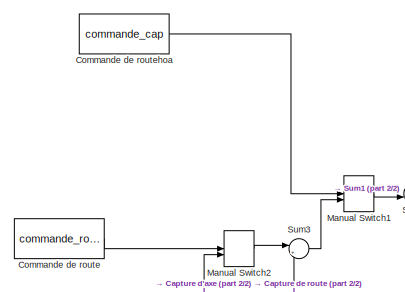
[diagram: root canvas - part 1/2, middle left region]
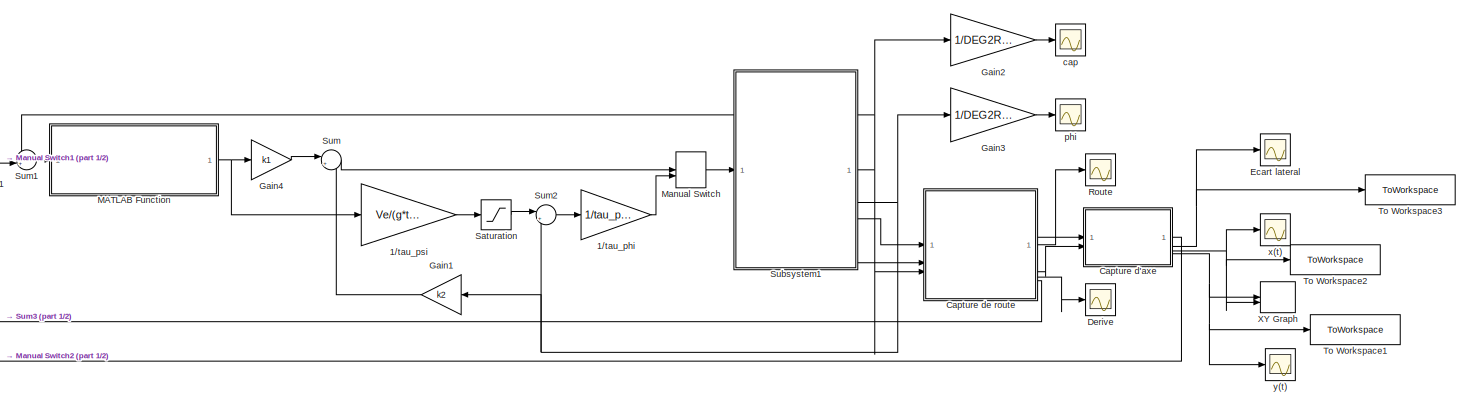
[diagram: root canvas - part 2/2, most of the canvas]
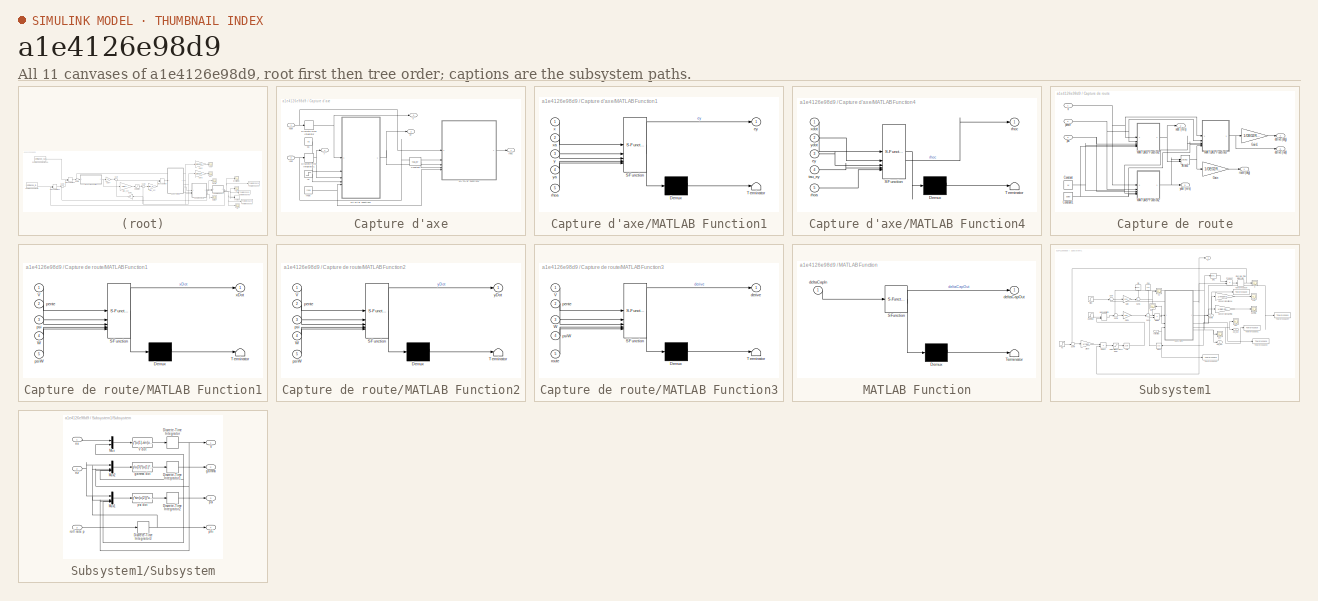
[diagram: thumbnail index - all 11 canvases of the model, root first then tree order]
MODEL slx_a1e4126e98d9
KIND model
CONFIG AbsTol = auto
CONFIG EnableMultiTasking = on
CONFIG FixedStep = Ts
CONFIG MaxStep = auto
CONFIG MinStep = auto
CONFIG RelTol = 1e-3
CONFIG SampleTimeConstraint = Unconstrained
CONFIG SolverName = FixedStepDiscrete
CONFIG StartTime = 0.0
CONFIG StopTime = 400
BLOCK [Gain] 1//tau_phi
  Gain = 1/tau_phi
BLOCK [Gain] 1//tau_psi
  Gain = Ve/(g*tau_psi)
BLOCK [SubSystem] Capture d'axe
BLOCK [Constant] Capture d'axe/Constant
  Value = tau_ey
BLOCK [DiscreteIntegrator] Capture d'axe/Discrete-Time Integrator
  ICPrevOutput = DiscIntNeverNeededParam
  ICPrevScaledInput = DiscIntNeverNeededParam
  InitialConditionSetting = Auto
  SampleTime = -1
BLOCK [DiscreteIntegrator] Capture d'axe/Discrete-Time Integrator1
  ICPrevOutput = DiscIntNeverNeededParam
  ICPrevScaledInput = DiscIntNeverNeededParam
  InitialConditionSetting = Auto
  SampleTime = -1
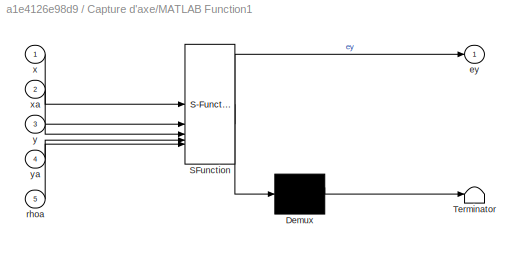
BLOCK [SubSystem] Capture d'axe/MATLAB Function1
  ErrorFcn = Stateflow.Translate.translate
  PermitHierarchicalResolution = ExplicitOnly
  SFBlockType = MATLAB Function
  TreatAsAtomicUnit = on
BLOCK [Demux] Capture d'axe/MATLAB Function1/ Demux 
  Outputs = 1
BLOCK [S-Function] Capture d'axe/MATLAB Function1/ SFunction 
  EnableBusSupport = off
  FunctionName = sf_sfun
  PortCounts = [5 2]
  SFcnIsStateOwnerBlock = off
  SFunctionDeploymentMode = off
  Tag = Stateflow S-Function 4
BLOCK [Terminator] Capture d'axe/MATLAB Function1/ Terminator 
BLOCK [Outport] Capture d'axe/MATLAB Function1/ey
  VectorParamsAs1DForOutWhenUnconnected = off
BLOCK [Inport] Capture d'axe/MATLAB Function1/rhoa
  Port = 5
BLOCK [Inport] Capture d'axe/MATLAB Function1/x
BLOCK [Inport] Capture d'axe/MATLAB Function1/xa
  Port = 2
BLOCK [Inport] Capture d'axe/MATLAB Function1/y
  Port = 3
BLOCK [Inport] Capture d'axe/MATLAB Function1/ya
  Port = 4
BLOCK [SubSystem] Capture d'axe/MATLAB Function4
  ErrorFcn = Stateflow.Translate.translate
  PermitHierarchicalResolution = ExplicitOnly
  SFBlockType = MATLAB Function
  TreatAsAtomicUnit = on
BLOCK [Demux] Capture d'axe/MATLAB Function4/ Demux 
  Outputs = 1
BLOCK [S-Function] Capture d'axe/MATLAB Function4/ SFunction 
  EnableBusSupport = off
  FunctionName = sf_sfun
  PortCounts = [5 2]
  SFcnIsStateOwnerBlock = off
  SFunctionDeploymentMode = off
  Tag = Stateflow S-Function 8
BLOCK [Terminator] Capture d'axe/MATLAB Function4/ Terminator 
BLOCK [Inport] Capture d'axe/MATLAB Function4/ey
  Port = 3
BLOCK [Inport] Capture d'axe/MATLAB Function4/rhoa
  Port = 5
BLOCK [Outport] Capture d'axe/MATLAB Function4/rhoc
  VectorParamsAs1DForOutWhenUnconnected = off
BLOCK [Inport] Capture d'axe/MATLAB Function4/tau_ey
  Port = 4
BLOCK [Inport] Capture d'axe/MATLAB Function4/xdot
BLOCK [Inport] Capture d'axe/MATLAB Function4/ydot
  Port = 2
BLOCK [Outport] Capture d'axe/ey
  Port = 2
BLOCK [Constant] Capture d'axe/rhoa
  Value = rhoa
BLOCK [Outport] Capture d'axe/rhoc
BLOCK [Outport] Capture d'axe/x
  Port = 3
BLOCK [Constant] Capture d'axe/xa
  Value = xa
BLOCK [Inport] Capture d'axe/xdot
BLOCK [Outport] Capture d'axe/y
  Port = 4
BLOCK [Step] Capture d'axe/ya
  After = ya
  SampleTime = 0
  Time = 50
BLOCK [Inport] Capture d'axe/ydot
  Port = 2
BLOCK [SubSystem] Capture de route
BLOCK [Trigonometry] Capture de route/Atan2
  Operator = atan2
BLOCK [Constant] Capture de route/Constant
  Value = W
BLOCK [Constant] Capture de route/Constant1
  Value = psiW
BLOCK [Gain] Capture de route/Gain
  Gain = 1/DEG2RAD
BLOCK [Gain] Capture de route/Gain1
  Gain = 1/DEG2RAD
BLOCK [SubSystem] Capture de route/MATLAB Function1
  ErrorFcn = Stateflow.Translate.translate
  PermitHierarchicalResolution = ExplicitOnly
  SFBlockType = MATLAB Function
  TreatAsAtomicUnit = on
BLOCK [Demux] Capture de route/MATLAB Function1/ Demux 
  Outputs = 1
BLOCK [S-Function] Capture de route/MATLAB Function1/ SFunction 
  EnableBusSupport = off
  FunctionName = sf_sfun
  PortCounts = [5 2]
  SFcnIsStateOwnerBlock = off
  SFunctionDeploymentMode = off
  Tag = Stateflow S-Function 1
BLOCK [Terminator] Capture de route/MATLAB Function1/ Terminator 
BLOCK [Inport] Capture de route/MATLAB Function1/V
BLOCK [Inport] Capture de route/MATLAB Function1/W
  Port = 4
BLOCK [Inport] Capture de route/MATLAB Function1/pente
  Port = 2
BLOCK [Inport] Capture de route/MATLAB Function1/psi
  Port = 3
BLOCK [Inport] Capture de route/MATLAB Function1/psiW
  Port = 5
BLOCK [Outport] Capture de route/MATLAB Function1/xDot
  VectorParamsAs1DForOutWhenUnconnected = off
BLOCK [SubSystem] Capture de route/MATLAB Function2
  ErrorFcn = Stateflow.Translate.translate
  PermitHierarchicalResolution = ExplicitOnly
  SFBlockType = MATLAB Function
  TreatAsAtomicUnit = on
BLOCK [Demux] Capture de route/MATLAB Function2/ Demux 
  Outputs = 1
BLOCK [S-Function] Capture de route/MATLAB Function2/ SFunction 
  EnableBusSupport = off
  FunctionName = sf_sfun
  PortCounts = [5 2]
  SFcnIsStateOwnerBlock = off
  SFunctionDeploymentMode = off
  Tag = Stateflow S-Function 3
BLOCK [Terminator] Capture de route/MATLAB Function2/ Terminator 
BLOCK [Inport] Capture de route/MATLAB Function2/V
BLOCK [Inport] Capture de route/MATLAB Function2/W
  Port = 4
BLOCK [Inport] Capture de route/MATLAB Function2/pente
  Port = 2
BLOCK [Inport] Capture de route/MATLAB Function2/psi
  Port = 3
BLOCK [Inport] Capture de route/MATLAB Function2/psiW
  Port = 5
BLOCK [Outport] Capture de route/MATLAB Function2/yDot
  VectorParamsAs1DForOutWhenUnconnected = off
BLOCK [SubSystem] Capture de route/MATLAB Function3
  ErrorFcn = Stateflow.Translate.translate
  PermitHierarchicalResolution = ExplicitOnly
  SFBlockType = MATLAB Function
  TreatAsAtomicUnit = on
BLOCK [Demux] Capture de route/MATLAB Function3/ Demux 
  Outputs = 1
BLOCK [S-Function] Capture de route/MATLAB Function3/ SFunction 
  EnableBusSupport = off
  FunctionName = sf_sfun
  PortCounts = [5 2]
  SFcnIsStateOwnerBlock = off
  SFunctionDeploymentMode = off
  Tag = Stateflow S-Function 5
BLOCK [Terminator] Capture de route/MATLAB Function3/ Terminator 
BLOCK [Inport] Capture de route/MATLAB Function3/V
BLOCK [Inport] Capture de route/MATLAB Function3/W
  Port = 3
BLOCK [Outport] Capture de route/MATLAB Function3/derive
  VectorParamsAs1DForOutWhenUnconnected = off
BLOCK [Inport] Capture de route/MATLAB Function3/pente
  Port = 2
BLOCK [Inport] Capture de route/MATLAB Function3/psiW
  Port = 4
BLOCK [Inport] Capture de route/MATLAB Function3/route
  Port = 5
BLOCK [Inport] Capture de route/V
BLOCK [Outport] Capture de route/derive (deg)
  Port = 4
  VectorParamsAs1DForOutWhenUnconnected = off
BLOCK [Outport] Capture de route/derive (rad)
  Port = 5
  VectorParamsAs1DForOutWhenUnconnected = off
BLOCK [Inport] Capture de route/pente
  Port = 2
BLOCK [Inport] Capture de route/psi
  Port = 3
BLOCK [Outport] Capture de route/route (deg)
  VectorParamsAs1DForOutWhenUnconnected = off
BLOCK [Outport] Capture de route/xdot (m//s)
  Port = 2
  VectorParamsAs1DForOutWhenUnconnected = off
BLOCK [Outport] Capture de route/ydot (m//s)
  Port = 3
  VectorParamsAs1DForOutWhenUnconnected = off
BLOCK [Constant] Commande de route
  Value = commande_route
BLOCK [Constant] Commande de routehoa
  Value = commande_cap
BLOCK [Scope] Derive
  ActiveDisplayYMaximum = 11.154001169828421
  ActiveDisplayYMinimum = -15.081164763955417
  DataLoggingVariableName = ScopeData3
  Floating = off
  GraphicalSettings = {"Style":{"BackgroundColor":[0.12941176470588237,0.12941176470588237,0.12941176470588237],"AxesColor":[0.07058823529411765,0.07058823529411765,0.07058823529411765],"LabelsColor":[0.8509803921568627,0.8509803921568627,0.8509803921568627],"PreserveColors":false,"Visible":[true],"LineStyle":["-"],"LineWidth":[1.5],"BarWidth":[0.9],"LineColor":["auto"],"LineFaceAlpha":[1],"LineEdgeAlpha":[1],"Marker":...<+2020ch>
  MultipleDisplayCache = [{"MaxYLimMag":15.081164763955417,"MaxYLimReal":11.154001169828421,"MinYLimMag":0,"MinYLimReal":-15.081164763955417,"PlotAsMagnitudePhase":false,"ShowGrid":true,"ShowLegend":false,"Title":"%<SignalLabel>","YLabel":""}]
  NumInputPorts = 1
  ScopeFrameLocation = window
  WasSavedAsWebScope = on
  WindowPosition = [81.000000,30.000000,1850.000000,1016.000000,]
BLOCK [Scope] Ecart lateral
  ActiveDisplayYMaximum = 306287.33804158476
  ActiveDisplayYMinimum = -34031.926449064966
  DataLoggingVariableName = ScopeData4
  Floating = off
  GraphicalSettings = {"AxesScalingProperties":{"AlignXAxis":"Center","AlignYAxis":"Center","AutoScaleXAxisLimits":false,"AxesScaling":"Manual","AxesScalingNumUpdates":10,"ExpandOnly":true,"ScaleAxesLimitsAtStop":false,"XAxisDataRange":100,"YAxisDataRange":80},"DisplayProperties":{"ColorOrder":["auto","auto","auto","auto","auto","auto","auto","auto","auto","auto","auto","auto","auto","auto","auto","auto","auto","auto",...<+2026ch>
  MultipleDisplayCache = [{"MaxYLimMag":306287.33804158476,"MaxYLimReal":306287.33804158476,"MinYLimMag":0,"MinYLimReal":-34031.926449064966,"PlotAsMagnitudePhase":false,"ShowGrid":true,"ShowLegend":false,"Title":"%<SignalLabel>","YLabel":""}]
  NumInputPorts = 1
  ScopeFrameLocation = window
  WasSavedAsWebScope = on
  WindowPosition = [67.000000,38.000000,1854.000000,1011.000000,]
BLOCK [Gain] Gain1
  Gain = k2
  NameLocation = top
BLOCK [Gain] Gain2
  Gain = 1/DEG2RAD
BLOCK [Gain] Gain3
  Gain = 1/DEG2RAD
BLOCK [Gain] Gain4
  Gain = k1
BLOCK [SubSystem] MATLAB Function
  ErrorFcn = Stateflow.Translate.translate
  PermitHierarchicalResolution = ExplicitOnly
  SFBlockType = MATLAB Function
  TreatAsAtomicUnit = on
BLOCK [Demux] MATLAB Function/ Demux 
  Outputs = 1
BLOCK [S-Function] MATLAB Function/ SFunction 
  EnableBusSupport = off
  FunctionName = sf_sfun
  PortCounts = [1 2]
  SFcnIsStateOwnerBlock = off
  SFunctionDeploymentMode = off
  Tag = Stateflow S-Function 2
BLOCK [Terminator] MATLAB Function/ Terminator 
BLOCK [Inport] MATLAB Function/deltaCapIn
BLOCK [Outport] MATLAB Function/deltaCapOut
  VectorParamsAs1DForOutWhenUnconnected = off
BLOCK [ManualSwitch] Manual Switch
  CurrentSetting = 0
BLOCK [ManualSwitch] Manual Switch1
BLOCK [ManualSwitch] Manual Switch2
  CurrentSetting = 0
BLOCK [Scope] Route
  ActiveDisplayYMaximum = 1.2116789248389637
  ActiveDisplayYMinimum = -133.45616003419806
  DataLoggingVariableName = ScopeData2
  Floating = off
  GraphicalSettings = {"Style":{"BackgroundColor":[0.12941176470588237,0.12941176470588237,0.12941176470588237],"AxesColor":[0.07058823529411765,0.07058823529411765,0.07058823529411765],"LabelsColor":[0.8509803921568627,0.8509803921568627,0.8509803921568627],"PreserveColors":false,"Visible":[true],"LineStyle":["-"],"LineWidth":[1.5],"BarWidth":[0.9],"LineColor":["auto"],"LineFaceAlpha":[1],"LineEdgeAlpha":[1],"Marker":...<+2017ch>
  MultipleDisplayCache = [{"MaxYLimMag":133.45616003419806,"MaxYLimReal":1.2116789248389637,"MinYLimMag":0,"MinYLimReal":-133.45616003419806,"PlotAsMagnitudePhase":false,"ShowGrid":true,"ShowLegend":false,"Title":"%<SignalLabel>","YLabel":""}]
  NumInputPorts = 1
  ScopeFrameLocation = window
  WasSavedAsWebScope = on
  WindowPosition = [274.000000,319.000000,668.000000,503.000000,]
BLOCK [Saturate] Saturation
  LowerLimit = -15*DEG2RAD
  UpperLimit = 15*DEG2RAD
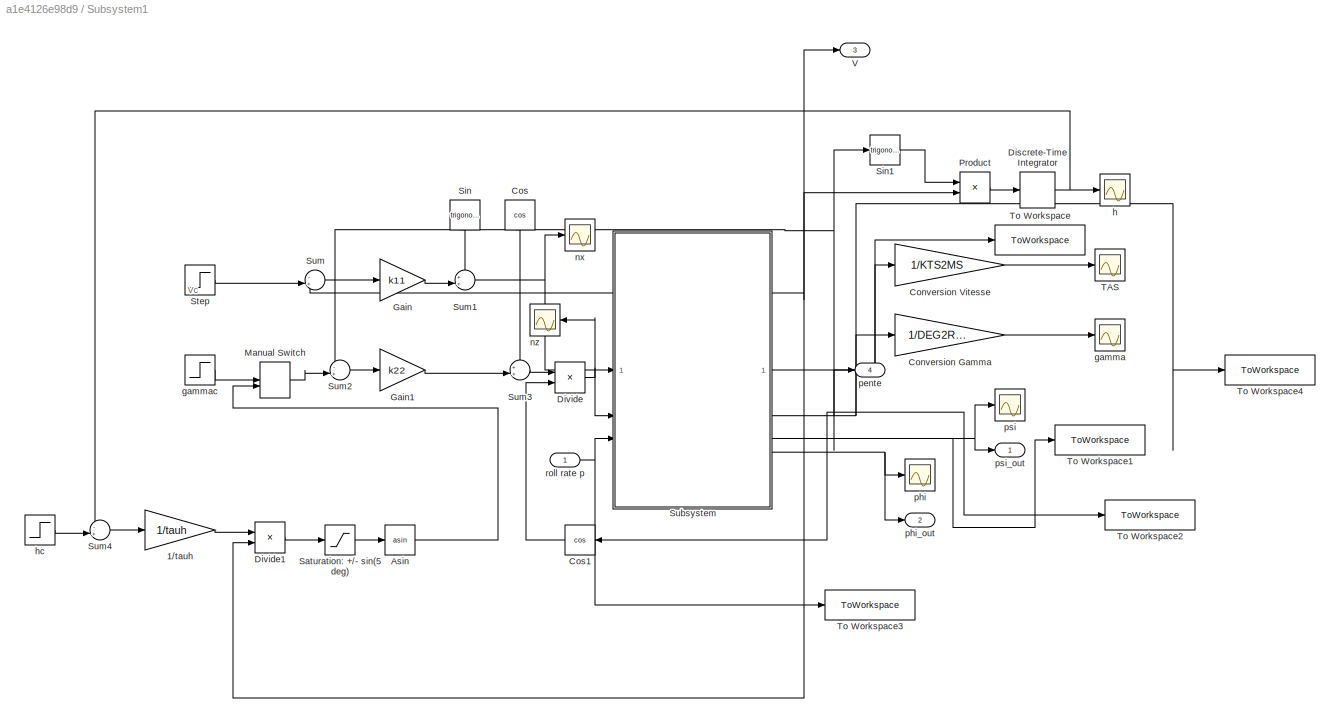
BLOCK [SubSystem] Subsystem1
BLOCK [Gain] Subsystem1/1//tauh
  Gain = 1/tauh
BLOCK [Trigonometry] Subsystem1/Asin
  Operator = asin
BLOCK [Gain] Subsystem1/Conversion Gamma
  Gain = 1/DEG2RAD
BLOCK [Gain] Subsystem1/Conversion Vitesse
  Gain = 1/KTS2MS
BLOCK [Trigonometry] Subsystem1/Cos
  NameLocation = left
  Operator = cos
BLOCK [Trigonometry] Subsystem1/Cos1
  NameLocation = top
  Operator = cos
BLOCK [DiscreteIntegrator] Subsystem1/Discrete-Time Integrator
  ICPrevOutput = DiscIntNeverNeededParam
  ICPrevScaledInput = DiscIntNeverNeededParam
  InitialConditionSetting = Auto
  SampleTime = -1
BLOCK [Product] Subsystem1/Divide
  Inputs = */
BLOCK [Product] Subsystem1/Divide1
  Inputs = */
BLOCK [Gain] Subsystem1/Gain
  Gain = k11
BLOCK [Gain] Subsystem1/Gain1
  Gain = k22
BLOCK [ManualSwitch] Subsystem1/Manual Switch
  CurrentSetting = 0
BLOCK [Product] Subsystem1/Product
BLOCK [Saturate] Subsystem1/Saturation: +//- sin(5 deg)
  LowerLimit = -sin(5*DEG2RAD)
  UpperLimit = sin(5*DEG2RAD)
BLOCK [Trigonometry] Subsystem1/Sin
  NameLocation = left
BLOCK [Trigonometry] Subsystem1/Sin1
BLOCK [Step] Subsystem1/Step
  After = Ve
  Before = Ve
  SampleTime = 0
  Time = 0
BLOCK [SubSystem] Subsystem1/Subsystem
BLOCK [DiscreteIntegrator] Subsystem1/Subsystem/Discrete-Time Integrator
  ICPrevOutput = DiscIntNeverNeededParam
  ICPrevScaledInput = DiscIntNeverNeededParam
  InitialCondition = Vie + k*ze
  InitialConditionSetting = Auto
  SampleTime = -1
BLOCK [DiscreteIntegrator] Subsystem1/Subsystem/Discrete-Time Integrator1
  ICPrevOutput = DiscIntNeverNeededParam
  ICPrevScaledInput = DiscIntNeverNeededParam
  InitialCondition = gammae
  InitialConditionSetting = Auto
  SampleTime = -1
BLOCK [DiscreteIntegrator] Subsystem1/Subsystem/Discrete-Time Integrator2
  ICPrevOutput = DiscIntNeverNeededParam
  ICPrevScaledInput = DiscIntNeverNeededParam
  InitialCondition = psie
  InitialConditionSetting = Auto
  SampleTime = -1
BLOCK [DiscreteIntegrator] Subsystem1/Subsystem/Discrete-Time Integrator3
  ICPrevOutput = DiscIntNeverNeededParam
  ICPrevScaledInput = DiscIntNeverNeededParam
  InitialCondition = phie
  InitialConditionSetting = Auto
  SampleTime = -1
BLOCK [Mux] Subsystem1/Subsystem/Mux
  DisplayOption = bar
  Inputs = 2
BLOCK [Mux] Subsystem1/Subsystem/Mux1
  DisplayOption = bar
BLOCK [Mux] Subsystem1/Subsystem/Mux2
  DisplayOption = bar
BLOCK [Outport] Subsystem1/Subsystem/V
  VectorParamsAs1DForOutWhenUnconnected = off
BLOCK [Fcn] Subsystem1/Subsystem/V dot
  Expr = g*(u(1)-sin(u(2)))
BLOCK [Outport] Subsystem1/Subsystem/gamma
  Port = 2
  VectorParamsAs1DForOutWhenUnconnected = off
BLOCK [Fcn] Subsystem1/Subsystem/gamma dot
  Expr = g/u(3)*(u(1)*cos(u(2))-cos(u(4)))
BLOCK [Inport] Subsystem1/Subsystem/nx
BLOCK [Inport] Subsystem1/Subsystem/nz
  Port = 2
BLOCK [Outport] Subsystem1/Subsystem/phi
  Port = 4
  VectorParamsAs1DForOutWhenUnconnected = off
BLOCK [Outport] Subsystem1/Subsystem/psi
  Port = 3
  VectorParamsAs1DForOutWhenUnconnected = off
BLOCK [Fcn] Subsystem1/Subsystem/psi dot
  Expr = g*sin(u(2))*u(1)/(u(3)*cos(u(4)))
BLOCK [Inport] Subsystem1/Subsystem/roll rate p
  Port = 3
BLOCK [Sum] Subsystem1/Sum
  Inputs = -+|
BLOCK [Sum] Subsystem1/Sum1
  Inputs = ++|
BLOCK [Sum] Subsystem1/Sum2
  Inputs = -+|
BLOCK [Sum] Subsystem1/Sum3
  Inputs = ++|
BLOCK [Sum] Subsystem1/Sum4
  Inputs = -+|
BLOCK [Scope] Subsystem1/TAS
  ActiveDisplayYMaximum = 1
  ActiveDisplayYMinimum = -1
  DataLoggingVariableName = ScopeData1
  Floating = off
  GraphicalSettings = {"Style":{"BackgroundColor":[0.12941176470588237,0.12941176470588237,0.12941176470588237],"AxesColor":[0.07058823529411765,0.07058823529411765,0.07058823529411765],"LabelsColor":[0.8509803921568627,0.8509803921568627,0.8509803921568627],"PreserveColors":false,"Visible":[true],"LineStyle":["-"],"LineWidth":[1.5],"BarWidth":[0.9],"LineColor":["auto"],"LineFaceAlpha":[1],"LineEdgeAlpha":[1],"Marker":...<+1930ch>
  MultipleDisplayCache = [{"MaxYLimMag":1,"MaxYLimReal":1,"MinYLimMag":0,"MinYLimReal":-1,"PlotAsMagnitudePhase":false,"ShowGrid":true,"ShowLegend":false,"Title":"%<SignalLabel>","YLabel":""}]
  NumInputPorts = 1
  ScopeFrameLocation = window
  WasSavedAsWebScope = on
  WindowPosition = [680.000000,367.000000,560.000000,420.000000,]
BLOCK [ToWorkspace] Subsystem1/To Workspace
  FixptAsFi = on
  MaxDataPoints = inf
  SampleTime = -1
  SaveFormat = Timeseries
  VariableName = TAS_m_s
BLOCK [ToWorkspace] Subsystem1/To Workspace1
  FixptAsFi = on
  MaxDataPoints = inf
  SampleTime = -1
  SaveFormat = Timeseries
  VariableName = sim_psi
BLOCK [ToWorkspace] Subsystem1/To Workspace2
  FixptAsFi = on
  MaxDataPoints = inf
  SampleTime = -1
  SaveFormat = Timeseries
  VariableName = sim_phi
BLOCK [ToWorkspace] Subsystem1/To Workspace3
  FixptAsFi = on
  MaxDataPoints = inf
  SampleTime = -1
  SaveFormat = Timeseries
  VariableName = sim_roll_rate
BLOCK [ToWorkspace] Subsystem1/To Workspace4
  FixptAsFi = on
  MaxDataPoints = inf
  SampleTime = -1
  SaveFormat = Timeseries
  VariableName = sim_gamma
BLOCK [Outport] Subsystem1/V
  Port = 3
  VectorParamsAs1DForOutWhenUnconnected = off
BLOCK [Scope] Subsystem1/gamma
  ActiveDisplayYMaximum = 1
  ActiveDisplayYMinimum = -1
  DataLoggingVariableName = ScopeData1
  Floating = off
  GraphicalSettings = {"Style":{"BackgroundColor":[0.12941176470588237,0.12941176470588237,0.12941176470588237],"AxesColor":[0.07058823529411765,0.07058823529411765,0.07058823529411765],"LabelsColor":[0.8509803921568627,0.8509803921568627,0.8509803921568627],"PreserveColors":false,"Visible":[true],"LineStyle":["-"],"LineWidth":[1.5],"BarWidth":[0.9],"LineColor":["auto"],"LineFaceAlpha":[1],"LineEdgeAlpha":[1],"Marker":...<+1948ch>
  MultipleDisplayCache = [{"MaxYLimMag":1,"MaxYLimReal":1,"MinYLimMag":0,"MinYLimReal":-1,"PlotAsMagnitudePhase":false,"ShowGrid":true,"ShowLegend":false,"Title":"%<SignalLabel>","YLabel":""}]
  NumInputPorts = 1
  ScopeFrameLocation = window
  WasSavedAsWebScope = on
  WindowPosition = [81.000000,30.000000,1850.000000,1016.000000,]
BLOCK [Step] Subsystem1/gammac 
  After = 3*DEG2RAD
  SampleTime = 0
  Time = 10
BLOCK [Scope] Subsystem1/h
  ActiveDisplayYMaximum = 3E-14
  ActiveDisplayYMinimum = -2.8E-13
  Floating = off
  GraphicalSettings = {"Style":{"BackgroundColor":[0.12941176470588237,0.12941176470588237,0.12941176470588237],"AxesColor":[0.07058823529411765,0.07058823529411765,0.07058823529411765],"LabelsColor":[0.8509803921568627,0.8509803921568627,0.8509803921568627],"PreserveColors":false,"Visible":[true],"LineStyle":["-"],"LineWidth":[1.5],"BarWidth":[0.9],"LineColor":["auto"],"LineFaceAlpha":[1],"LineEdgeAlpha":[1],"Marker":...<+1937ch>
  MultipleDisplayCache = [{"MaxYLimMag":2.8E-13,"MaxYLimReal":3E-14,"MinYLimMag":0,"MinYLimReal":-2.8E-13,"PlotAsMagnitudePhase":false,"ShowGrid":true,"ShowLegend":false,"Title":"%<SignalLabel>","YLabel":""}]
  NumInputPorts = 1
  ScopeFrameLocation = window
  WasSavedAsWebScope = on
  WindowPosition = [81.000000,30.000000,1850.000000,1016.000000,]
BLOCK [Step] Subsystem1/hc
  After = 0
  SampleTime = 0
  Time = 0
BLOCK [Scope] Subsystem1/nx
  ActiveDisplayYMaximum = 1.2E-16
  ActiveDisplayYMinimum = -1.1E-16
  DataLoggingVariableName = ScopeData1
  Floating = off
  GraphicalSettings = {"GraphicalSettings":{"LegacySettings":true,"Style":{"Style":{"AxesColor":"[0 0 0]","ChannelNames":[""],"ColorOrder":"[1 1 0.0666666666666667;0.0745098039215686 0.623529411764706 1;1 0.411764705882353 0.16078431372549;0.392156862745098 0.831372549019608 0.0745098039215686;0.717647058823529 0.274509803921569 1;0.0588235294117647 1 1;1 0.0745098039215686 0.650980392156863]","CurrentConfiguration":"e...<+343ch>  <repeated x3 — deduplicated; at blocks: nx, phi, psi>
  MultipleDisplayCache = [{"MaxYLimMag":1.2E-16,"MaxYLimReal":1.2E-16,"MinYLimMag":0,"MinYLimReal":-1.1E-16,"PlotAsMagnitudePhase":false,"ShowGrid":true,"ShowLegend":false,"Title":"%<SignalLabel>","YLabel":""}]
  NumInputPorts = 1
  WasSavedAsWebScope = on
BLOCK [Scope] Subsystem1/nz
  ActiveDisplayYMaximum = 1.03661
  ActiveDisplayYMinimum = 0.99758
  DataLoggingVariableName = ScopeData1
  Floating = off
  GraphicalSettings = {"GraphicalSettings":{"LegacySettings":true,"Style":{"AxesScalingProperties":{"ScaleAxesLimitsAtStop":false},"Style":{"AxesColor":"[0 0 0]","ChannelNames":[""],"ColorOrder":"[1 1 0.0666666666666667;0.0745098039215686 0.623529411764706 1;1 0.411764705882353 0.16078431372549;0.392156862745098 0.831372549019608 0.0745098039215686;0.717647058823529 0.274509803921569 1;0.0588235294117647 1 1;1 0.074509...<+399ch>
  MultipleDisplayCache = [{"MaxYLimMag":1.03661,"MaxYLimReal":1.03661,"MinYLimMag":0.99758,"MinYLimReal":0.99758,"PlotAsMagnitudePhase":false,"ShowGrid":true,"ShowLegend":false,"Title":"%<SignalLabel>","YLabel":""}]
  NameLocation = top
  NumInputPorts = 1
  WasSavedAsWebScope = on
BLOCK [Outport] Subsystem1/pente
  Port = 4
  VectorParamsAs1DForOutWhenUnconnected = off
BLOCK [Scope] Subsystem1/phi
  ActiveDisplayYMaximum = 1
  ActiveDisplayYMinimum = -1
  DataLoggingVariableName = ScopeData3
  Floating = off
  MultipleDisplayCache = [{"MaxYLimMag":1,"MaxYLimReal":1,"MinYLimMag":0,"MinYLimReal":-1,"PlotAsMagnitudePhase":false,"ShowGrid":true,"ShowLegend":false,"Title":"%<SignalLabel>","YLabel":""}]
  NumInputPorts = 1
  WasSavedAsWebScope = on
BLOCK [Outport] Subsystem1/phi_out
  Port = 2
  VectorParamsAs1DForOutWhenUnconnected = off
BLOCK [Scope] Subsystem1/psi
  ActiveDisplayYMaximum = 3.54245
  ActiveDisplayYMinimum = -0.39361
  DataLoggingVariableName = ScopeData2
  Floating = off
  MultipleDisplayCache = [{"MaxYLimMag":3.54245,"MaxYLimReal":3.54245,"MinYLimMag":0,"MinYLimReal":-0.39361,"PlotAsMagnitudePhase":false,"ShowGrid":true,"ShowLegend":false,"Title":"%<SignalLabel>","YLabel":""}]
  NumInputPorts = 1
  WasSavedAsWebScope = on
BLOCK [Outport] Subsystem1/psi_out
  VectorParamsAs1DForOutWhenUnconnected = off
BLOCK [Inport] Subsystem1/roll rate p
BLOCK [Sum] Sum
  Inputs = |+-
BLOCK [Sum] Sum1
  Inputs = -+|
BLOCK [Sum] Sum2
  Inputs = |+-
BLOCK [Sum] Sum3
  Inputs = |+-
BLOCK [ToWorkspace] To Workspace1
  FixptAsFi = on
  MaxDataPoints = inf
  SampleTime = -1
  SaveFormat = Timeseries
  VariableName = sim_y
BLOCK [ToWorkspace] To Workspace2
  FixptAsFi = on
  MaxDataPoints = inf
  SampleTime = -1
  SaveFormat = Timeseries
  VariableName = sim_x
BLOCK [ToWorkspace] To Workspace3
  FixptAsFi = on
  MaxDataPoints = inf
  SampleTime = -1
  SaveFormat = Timeseries
  VariableName = sim_ey
BLOCK [Record] XY Graph
  CompatibilityTag = XY
  FileSettingsInternal = {"entries":[{"content":{"excelSettings":{"content":{},"type":"Streamout.ExcelSettings"},"parquetSettings":{"content":{},"type":"Streamout.ParquetSettings"}},"type":"Streamout.FileSettingStorage","uuid":""}],"packageUris":["http:\/\/schema.mathworks.com\/mf0\/streamout_blocks\/R2020a"],"version":"1.0"}
  FrameSettings = [0, 0]
  Layout = [1 1]
  NumPorts = 2.0
  SignalsInternal = {"entries":[{"content":{"signals":[{"content":{"blockPath":[],"dimensions":[1],"domain":"","lineColor":"#a2142f","plots":[ 1 ],"port":1,"signalID":1,"signalName":"Capture d'axe:4"},"type":"RecordBlkView.Signal","uuid":""},{"content":{"blockPath":[],"dimensions":[1],"domain":"","lineColor":"#139fff","plots":[ 1 ],"port":2,"signalID":2,"signalName":"Capture d'axe:3"},"type":"RecordBlkView.Signal","u...<+154ch>
  VisualizationBindings = {"xyplotplugin":{"info":[{"series":[{"bindingParametersList":[{"parameter":"X-Axis","signalID":1,"signalName":"Capture d'axe:4"},{"parameter":"Y-Axis","signalID":2,"signalName":"Capture d'axe:3"}],"seriesID":0}],"subplotID":1}]}}
BLOCK [Scope] cap
  ActiveDisplayYMaximum = 17.922431645748464
  ActiveDisplayYMinimum = -144.80303082336096
  DataLoggingVariableName = ScopeData2
  Floating = off
  GraphicalSettings = {"Style":{"BackgroundColor":[0.12941176470588237,0.12941176470588237,0.12941176470588237],"AxesColor":[0.07058823529411765,0.07058823529411765,0.07058823529411765],"LabelsColor":[0.8509803921568627,0.8509803921568627,0.8509803921568627],"PreserveColors":false,"Visible":[true],"LineStyle":["-"],"LineWidth":[1.5],"BarWidth":[0.9],"LineColor":["auto"],"LineFaceAlpha":[1],"LineEdgeAlpha":[1],"Marker":...<+1997ch>
  MultipleDisplayCache = [{"MaxYLimMag":144.80303082336096,"MaxYLimReal":17.922431645748464,"MinYLimMag":0,"MinYLimReal":-144.80303082336096,"PlotAsMagnitudePhase":false,"ShowGrid":true,"ShowLegend":false,"Title":"%<SignalLabel>","YLabel":""}]
  NumInputPorts = 1
  ScopeFrameLocation = window
  WasSavedAsWebScope = on
  WindowPosition = [302.000000,457.000000,638.000000,510.000000,]
BLOCK [Scope] phi
  ActiveDisplayYMaximum = 4.0475505494690314
  ActiveDisplayYMinimum = -35.842140746185393
  DataLoggingVariableName = ScopeData3
  Floating = off
  GraphicalSettings = {"Style":{"BackgroundColor":[0.12941176470588237,0.12941176470588237,0.12941176470588237],"AxesColor":[0.07058823529411765,0.07058823529411765,0.07058823529411765],"LabelsColor":[0.8509803921568627,0.8509803921568627,0.8509803921568627],"PreserveColors":false,"Visible":[true],"LineStyle":["-"],"LineWidth":[1.5],"BarWidth":[0.9],"LineColor":["auto"],"LineFaceAlpha":[1],"LineEdgeAlpha":[1],"Marker":...<+1997ch>
  MultipleDisplayCache = [{"MaxYLimMag":35.842140746185393,"MaxYLimReal":4.0475505494690314,"MinYLimMag":0,"MinYLimReal":-35.842140746185393,"PlotAsMagnitudePhase":false,"ShowGrid":true,"ShowLegend":false,"Title":"%<SignalLabel>","YLabel":""}]
  NumInputPorts = 1
  ScopeFrameLocation = window
  WasSavedAsWebScope = on
  WindowPosition = [81.000000,30.000000,1850.000000,1016.000000,]
BLOCK [Scope] x(t)
  ActiveDisplayYMaximum = 1
  ActiveDisplayYMinimum = -1
  DataLoggingVariableName = ScopeData6
  Floating = off
  GraphicalSettings = {"Style":{"BackgroundColor":[0.12941176470588237,0.12941176470588237,0.12941176470588237],"AxesColor":[0.07058823529411765,0.07058823529411765,0.07058823529411765],"LabelsColor":[0.8509803921568627,0.8509803921568627,0.8509803921568627],"PreserveColors":false,"Visible":[true],"LineStyle":["-"],"LineWidth":[1.5],"BarWidth":[0.9],"LineColor":["auto"],"LineFaceAlpha":[1],"LineEdgeAlpha":[1],"Marker":...<+2006ch>
  MultipleDisplayCache = [{"MaxYLimMag":1,"MaxYLimReal":1,"MinYLimMag":0,"MinYLimReal":-1,"PlotAsMagnitudePhase":false,"ShowGrid":true,"ShowLegend":false,"Title":"%<SignalLabel>","YLabel":""}]
  NumInputPorts = 1
  ScopeFrameLocation = window
  WasSavedAsWebScope = on
  WindowPosition = [144.000000,314.000000,560.000000,430.000000,]
BLOCK [Scope] y(t)
  ActiveDisplayYMaximum = 1
  ActiveDisplayYMinimum = -1
  DataLoggingVariableName = ScopeData5
  Floating = off
  GraphicalSettings = {"Style":{"BackgroundColor":[0.12941176470588237,0.12941176470588237,0.12941176470588237],"AxesColor":[0.07058823529411765,0.07058823529411765,0.07058823529411765],"LabelsColor":[0.8509803921568627,0.8509803921568627,0.8509803921568627],"PreserveColors":false,"Visible":[true],"LineStyle":["-"],"LineWidth":[1.5],"BarWidth":[0.9],"LineColor":["auto"],"LineFaceAlpha":[1],"LineEdgeAlpha":[1],"Marker":...<+2004ch>
  MultipleDisplayCache = [{"MaxYLimMag":1,"MaxYLimReal":1,"MinYLimMag":0,"MinYLimReal":-1,"PlotAsMagnitudePhase":false,"ShowGrid":true,"ShowLegend":false,"Title":"%<SignalLabel>","YLabel":""}]
  NumInputPorts = 1
  ScopeFrameLocation = window
  WasSavedAsWebScope = on
  WindowPosition = [720.000000,313.000000,560.000000,425.000000,]
ANNOTATION Subsystem1: Vc
LINE 1//tau_phi:1 -> Manual Switch:2
LINE 1//tau_psi:1 -> Saturation:1
LINE Capture d'axe/Constant:1 -> Capture d'axe/MATLAB Function4:4
NET Capture d'axe/Discrete-Time Integrator1:1 -> Capture d'axe/MATLAB Function1:3, Capture d'axe/y:1
NET Capture d'axe/Discrete-Time Integrator:1 -> Capture d'axe/MATLAB Function1:1, Capture d'axe/x:1
NET Capture d'axe/MATLAB Function1:1 -> Capture d'axe/MATLAB Function4:3, Capture d'axe/ey:1
LINE Capture d'axe/MATLAB Function4:1 -> Capture d'axe/rhoc:1
NET Capture d'axe/rhoa:1 -> Capture d'axe/MATLAB Function1:5, Capture d'axe/MATLAB Function4:5
LINE Capture d'axe/xa:1 -> Capture d'axe/MATLAB Function1:2
NET Capture d'axe/xdot:1 -> Capture d'axe/Discrete-Time Integrator:1, Capture d'axe/MATLAB Function4:1
LINE Capture d'axe/ya:1 -> Capture d'axe/MATLAB Function1:4
NET Capture d'axe/ydot:1 -> Capture d'axe/Discrete-Time Integrator1:1, Capture d'axe/MATLAB Function4:2
LINE Capture d'axe:1 -> Manual Switch2:2
NET Capture d'axe:2 -> Ecart lateral:1, To Workspace3:1
NET Capture d'axe:3 -> To Workspace2:1, XY Graph:2, x(t):1
NET Capture d'axe:4 -> To Workspace1:1, XY Graph:1, y(t):1
NET Capture de route/Atan2:1 -> Capture de route/Gain:1, Capture de route/MATLAB Function3:5
NET Capture de route/Constant1:1 -> Capture de route/MATLAB Function1:5, Capture de route/MATLAB Function2:5, Capture de route/MATLAB Function3:4
NET Capture de route/Constant:1 -> Capture de route/MATLAB Function1:4, Capture de route/MATLAB Function2:4, Capture de route/MATLAB Function3:3
LINE Capture de route/Gain1:1 -> Capture de route/derive (deg):1
LINE Capture de route/Gain:1 -> Capture de route/route (deg):1
NET Capture de route/MATLAB Function1:1 -> Capture de route/Atan2:2, Capture de route/xdot (m//s):1
NET Capture de route/MATLAB Function2:1 -> Capture de route/Atan2:1, Capture de route/ydot (m//s):1
NET Capture de route/MATLAB Function3:1 -> Capture de route/Gain1:1, Capture de route/derive (rad):1
NET Capture de route/V:1 -> Capture de route/MATLAB Function1:1, Capture de route/MATLAB Function2:1, Capture de route/MATLAB Function3:1
NET Capture de route/pente:1 -> Capture de route/MATLAB Function1:2, Capture de route/MATLAB Function2:2, Capture de route/MATLAB Function3:2
NET Capture de route/psi:1 -> Capture de route/MATLAB Function1:3, Capture de route/MATLAB Function2:3
LINE Capture de route:1 -> Route:1
LINE Capture de route:2 -> Capture d'axe:1
LINE Capture de route:3 -> Capture d'axe:2
LINE Capture de route:4 -> Derive:1
LINE Capture de route:5 -> Sum3:2
LINE Commande de route:1 -> Manual Switch2:1
LINE Commande de routehoa:1 -> Manual Switch1:1
LINE Gain1:1 -> Sum:2
LINE Gain2:1 -> cap:1
LINE Gain3:1 -> phi:1
LINE Gain4:1 -> Sum:1
NET MATLAB Function:1 -> 1//tau_psi:1, Gain4:1
LINE Manual Switch1:1 -> Sum1:2
LINE Manual Switch2:1 -> Sum3:1
LINE Manual Switch:1 -> Subsystem1:1
LINE Saturation:1 -> Sum2:1
LINE Subsystem1/1//tauh:1 -> Subsystem1/Divide1:1
LINE Subsystem1/Asin:1 -> Subsystem1/Manual Switch:2
LINE Subsystem1/Conversion Gamma:1 -> Subsystem1/gamma:1
LINE Subsystem1/Conversion Vitesse:1 -> Subsystem1/TAS:1
LINE Subsystem1/Cos1:1 -> Subsystem1/Divide:2
LINE Subsystem1/Cos:1 -> Subsystem1/Sum3:1
NET Subsystem1/Discrete-Time Integrator:1 -> Subsystem1/Sum4:1, Subsystem1/h:1
LINE Subsystem1/Divide1:1 -> Subsystem1/Saturation: +//- sin(5 deg):1
NET Subsystem1/Divide:1 -> Subsystem1/Subsystem:2, Subsystem1/nz:1
LINE Subsystem1/Gain1:1 -> Subsystem1/Sum3:2
LINE Subsystem1/Gain:1 -> Subsystem1/Sum1:2
LINE Subsystem1/Manual Switch:1 -> Subsystem1/Sum2:2
LINE Subsystem1/Product:1 -> Subsystem1/Discrete-Time Integrator:1
LINE Subsystem1/Saturation: +//- sin(5 deg):1 -> Subsystem1/Asin:1
LINE Subsystem1/Sin1:1 -> Subsystem1/Product:1
LINE Subsystem1/Sin:1 -> Subsystem1/Sum1:1
LINE Subsystem1/Step:1 -> Subsystem1/Sum:2
NET Subsystem1/Subsystem/Discrete-Time Integrator1:1 -> Subsystem1/Subsystem/Mux1:4, Subsystem1/Subsystem/Mux2:4, Subsystem1/Subsystem/Mux:2, Subsystem1/Subsystem/gamma:1
LINE Subsystem1/Subsystem/Discrete-Time Integrator2:1 -> Subsystem1/Subsystem/psi:1
NET Subsystem1/Subsystem/Discrete-Time Integrator3:1 -> Subsystem1/Subsystem/Mux1:2, Subsystem1/Subsystem/Mux2:2, Subsystem1/Subsystem/phi:1
NET Subsystem1/Subsystem/Discrete-Time Integrator:1 -> Subsystem1/Subsystem/Mux1:3, Subsystem1/Subsystem/Mux2:3, Subsystem1/Subsystem/V:1
LINE Subsystem1/Subsystem/Mux1:1 -> Subsystem1/Subsystem/psi dot:1
LINE Subsystem1/Subsystem/Mux2:1 -> Subsystem1/Subsystem/gamma dot:1
LINE Subsystem1/Subsystem/Mux:1 -> Subsystem1/Subsystem/V dot:1
LINE Subsystem1/Subsystem/V dot:1 -> Subsystem1/Subsystem/Discrete-Time Integrator:1
LINE Subsystem1/Subsystem/gamma dot:1 -> Subsystem1/Subsystem/Discrete-Time Integrator1:1
LINE Subsystem1/Subsystem/nx:1 -> Subsystem1/Subsystem/Mux:1
NET Subsystem1/Subsystem/nz:1 -> Subsystem1/Subsystem/Mux1:1, Subsystem1/Subsystem/Mux2:1
LINE Subsystem1/Subsystem/psi dot:1 -> Subsystem1/Subsystem/Discrete-Time Integrator2:1
LINE Subsystem1/Subsystem/roll rate p:1 -> Subsystem1/Subsystem/Discrete-Time Integrator3:1
NET Subsystem1/Subsystem:1 -> Subsystem1/Conversion Vitesse:1, Subsystem1/Divide1:2, Subsystem1/Product:2, Subsystem1/Sum:1, Subsystem1/To Workspace:1, Subsystem1/V:1
NET Subsystem1/Subsystem:2 -> Subsystem1/Conversion Gamma:1, Subsystem1/Cos:1, Subsystem1/Sin1:1, Subsystem1/Sin:1, Subsystem1/Sum2:1, Subsystem1/To Workspace4:1, Subsystem1/pente:1
NET Subsystem1/Subsystem:3 -> Subsystem1/To Workspace1:1, Subsystem1/psi:1, Subsystem1/psi_out:1
NET Subsystem1/Subsystem:4 -> Subsystem1/Cos1:1, Subsystem1/To Workspace2:1, Subsystem1/phi:1, Subsystem1/phi_out:1
NET Subsystem1/Sum1:1 -> Subsystem1/Subsystem:1, Subsystem1/nx:1
LINE Subsystem1/Sum2:1 -> Subsystem1/Gain1:1
LINE Subsystem1/Sum3:1 -> Subsystem1/Divide:1
LINE Subsystem1/Sum4:1 -> Subsystem1/1//tauh:1
LINE Subsystem1/Sum:1 -> Subsystem1/Gain:1
LINE Subsystem1/gammac :1 -> Subsystem1/Manual Switch:1
LINE Subsystem1/hc:1 -> Subsystem1/Sum4:2
NET Subsystem1/roll rate p:1 -> Subsystem1/Subsystem:3, Subsystem1/To Workspace3:1
NET Subsystem1:1 -> Capture de route:3, Gain2:1, Sum1:1
NET Subsystem1:2 -> Gain1:1, Gain3:1, Sum2:2
LINE Subsystem1:3 -> Capture de route:1
LINE Subsystem1:4 -> Capture de route:2
LINE Sum1:1 -> MATLAB Function:1
LINE Sum2:1 -> 1//tau_phi:1
LINE Sum3:1 -> Manual Switch1:2
LINE Sum:1 -> Manual Switch:1
note: NET lines group one-source signal fan-out (src -> all destinations, sorted); 1:1 wires keep LINE
CHART Capture de route/MATLAB Function1 states=1 transitions=1
  STATE_LABEL 'eML_blk_kernel()'
  STATE_LABEL 'SCRIPT:\nfunction xDot = xDotFcn(V, pente, psi, W, psiW)\n\nxDot = V*cos(pente)*cos(psi) + W*cos(psiW + pi);\n'
CHART MATLAB Function states=1 transitions=1
  STATE_LABEL 'eML_blk_kernel()'
  STATE_LABEL 'SCRIPT:\nfunction deltaCapOut = modulo360(deltaCapIn)\n\ndeltaCapOut = deltaCapIn;\nwhile (deltaCapOut > pi)\n    deltaCapOut = deltaCapOut - 2*pi;\nend\nwhile (deltaCapOut < -pi)\n    deltaCapOut = deltaCapOut + 2*pi;\nend\n'
CHART Capture de route/MATLAB Function2 states=1 transitions=1
  STATE_LABEL 'eML_blk_kernel()'
  STATE_LABEL 'SCRIPT:\nfunction yDot = yDotFcn(V, pente, psi, W, psiW)\n\nyDot = V*cos(pente)*sin(psi) + W*sin(psiW + pi);\n'
CHART Capture d'axe/MATLAB Function1 states=1 transitions=1
  STATE_LABEL 'eML_blk_kernel()'
  STATE_LABEL 'SCRIPT:\nfunction ey = captureEcartLateral(x, xa, y, ya, rhoa)\n\ney = -(x - xa) * sin(rhoa) + (y - ya) * cos(rhoa);\n'
CHART Capture de route/MATLAB Function3 states=1 transitions=1
  STATE_LABEL 'eML_blk_kernel()'
  STATE_LABEL 'SCRIPT:\nfunction derive = deriveFcn(V, pente, W, psiW, route)\n\nargSin = W/(V*cos(pente))*sin(pi + psiW - route);\nif argSin > 1\n    argSin = 1;\nelseif argSin < -1\n    argSin = -1;\nend\nderive = asin(argSin);\n'
CHART Capture d'axe/MATLAB Function4 states=1 transitions=1
  STATE_LABEL 'eML_blk_kernel()'
  STATE_LABEL 'SCRIPT:\nfunction rhoc = captureConsigneRhoC_SansEx(xdot, ydot, ey, tau_ey, rhoa)\n\nGs = sqrt(xdot^2 + ydot^2);\n\nargSin = -ey / (tau_ey * Gs);\nif argSin > 1\n    argSin = 1;\nelseif argSin < -1\n    argSin = -1;\nend\n\nrhoc = asin(argSin) + rhoa;\n'
CHART  states=0 transitions=0
CHART  states=0 transitions=0
CHART  states=0 transitions=0
CHART  states=0 transitions=0
CHART  states=0 transitions=0
CHART  states=0 transitions=0
